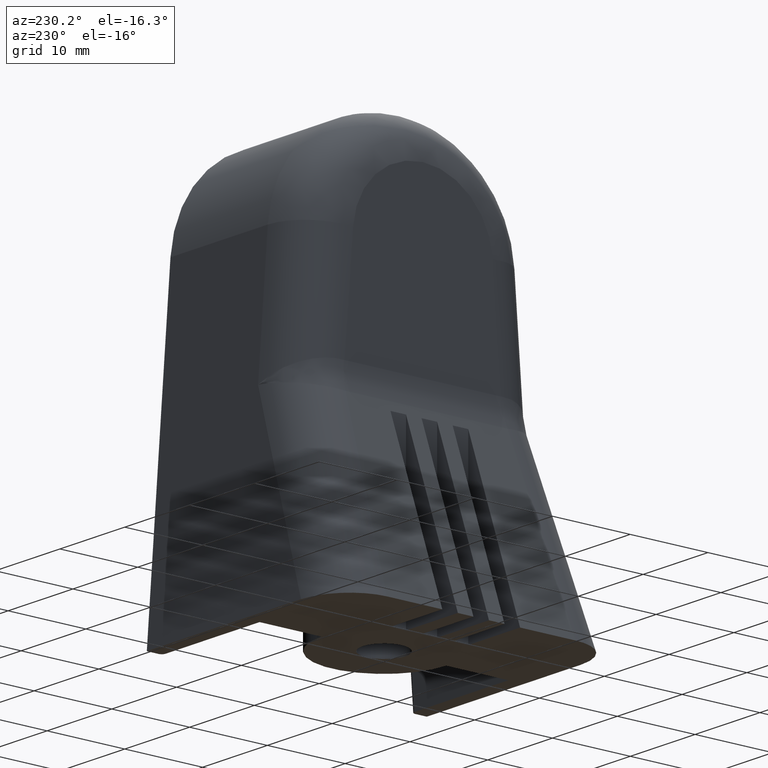
[diagram: clean part render]
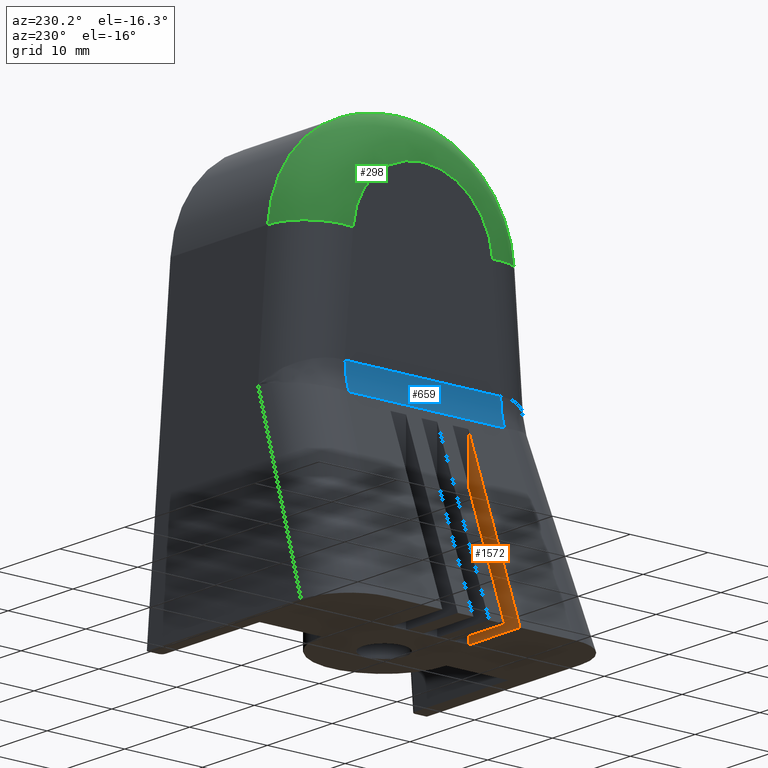
[diagram: same view with three faces highlighted in distinct colors, each labeled with its STEP entity id]
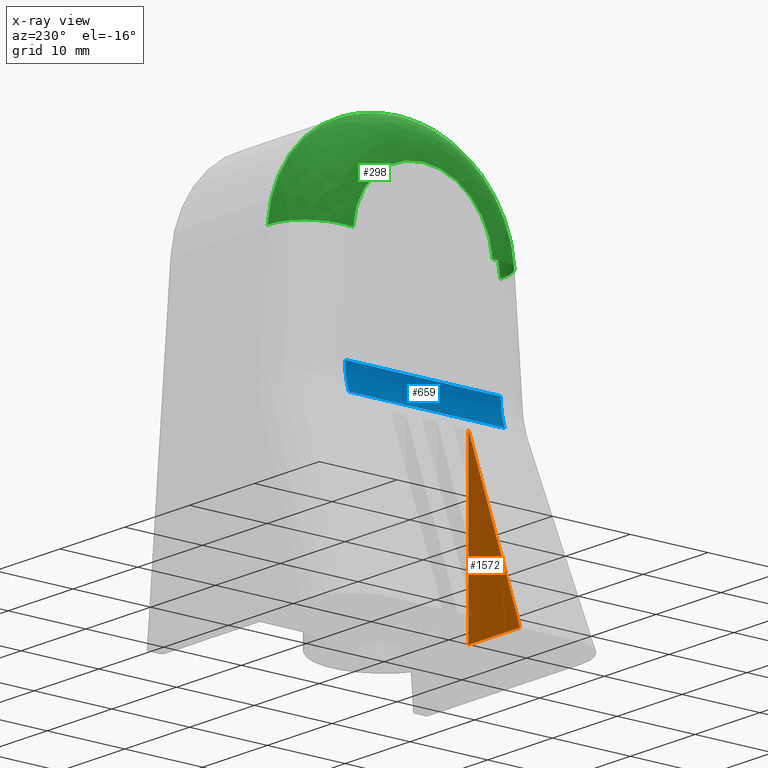
[diagram: x-ray of the same camera — body ghosted, the three highlighted faces saturated]
A machine part, auxiliary view with three faces highlighted in distinct colors.
The next image is the same camera in x-ray (body ghosted, the three faces saturated) — at least one of them is partly hidden behind the body in this view.
Their STEP definitions:

[orange] entity #1572 — the highlighted planar face has unit normal (0, 1, 0).
#489=CARTESIAN_POINT('',(-6.999999999999996,-4.999999999999996,22.222222222222214));
#490=VERTEX_POINT('',#489);
#497=CARTESIAN_POINT('',(-14.999999999999996,-4.999999999999996,3.061617E-016));
#498=VERTEX_POINT('',#497);
#499=CARTESIAN_POINT('',(-14.999999999999996,-4.999999999999996,3.061617E-016));
#500=DIRECTION('',(0.338719468272742,-7.521083E-017,0.940887411868727));
#501=VECTOR('',#500,23.618364898820300);
#502=LINE('',#499,#501);
#503=EDGE_CURVE('',#498,#490,#502,.T.);
#1524=CARTESIAN_POINT('',(-6.999999999999996,-4.999999999999998,3.061617E-016));
#1525=VERTEX_POINT('',#1524);
#1532=CARTESIAN_POINT('',(-6.999999999999996,-4.999999999999997,22.222222222222214));
#1533=DIRECTION('',(0.0,0.0,-1.0));
#1534=VECTOR('',#1533,22.222222222222214);
#1535=LINE('',#1532,#1534);
#1536=EDGE_CURVE('',#490,#1525,#1535,.T.);
#1557=CARTESIAN_POINT('',(-27.0,-4.999999999999992,62.289848327636719));
#1558=DIRECTION('',(0.0,1.0,0.0));
#1559=DIRECTION('',(1.0,0.0,0.0));
#1560=AXIS2_PLACEMENT_3D('',#1557,#1558,#1559);
#1561=PLANE('',#1560);
#1562=ORIENTED_EDGE('',*,*,#1536,.T.);
#1563=CARTESIAN_POINT('',(-14.999999999999996,-4.999999999999996,3.061617E-016));
#1564=DIRECTION('',(1.0,0.0,0.0));
#1565=VECTOR('',#1564,8.0);
#1566=LINE('',#1563,#1565);
#1567=EDGE_CURVE('',#498,#1525,#1566,.T.);
#1568=ORIENTED_EDGE('',*,*,#1567,.F.);
#1569=ORIENTED_EDGE('',*,*,#503,.T.);
#1570=EDGE_LOOP('',(#1562,#1568,#1569));
#1571=FACE_OUTER_BOUND('',#1570,.T.);
#1572=ADVANCED_FACE('',(#1571),#1561,.T.);

[blue] entity #659 — the highlighted cylindrical surface (partial cylindrical patch) has radius 10 mm, axis along (0, -1, 0).
#385=CARTESIAN_POINT('',(-5.999999999999999,10.005121839980950,26.745178345747590));
#386=VERTEX_POINT('',#385);
#521=CARTESIAN_POINT('',(-6.591125881312732,-10.005121839980950,23.357983663020178));
#522=VERTEX_POINT('',#521);
#530=CARTESIAN_POINT('',(-6.591125881312730,10.005121839980950,23.357983663020178));
#531=VERTEX_POINT('',#530);
#532=CARTESIAN_POINT('',(-6.591125881312732,-10.005121839980950,23.357983663020178));
#533=DIRECTION('',(0.0,1.0,0.0));
#534=VECTOR('',#533,20.010243679961899);
#535=LINE('',#532,#534);
#536=EDGE_CURVE('',#522,#531,#535,.T.);
#585=CARTESIAN_POINT('',(-6.000000000000001,-10.005121839980950,26.745178345747597));
#586=VERTEX_POINT('',#585);
#625=CARTESIAN_POINT('',(-6.000000000000001,-10.005121839980950,26.745178345747597));
#626=DIRECTION('',(0.0,1.0,0.0));
#627=VECTOR('',#626,20.010243679961899);
#628=LINE('',#625,#627);
#629=EDGE_CURVE('',#586,#386,#628,.T.);
#636=CARTESIAN_POINT('',(-16.0,-10.005121839980948,26.745178345747597));
#637=DIRECTION('',(5.193358E-017,-1.0,3.755821E-016));
#638=DIRECTION('',(0.940887411868727,-7.835332E-017,-0.338719468272742));
#639=AXIS2_PLACEMENT_3D('',#636,#637,#638);
#640=CYLINDRICAL_SURFACE('',#639,10.000000000000002);
#641=CARTESIAN_POINT('',(-16.000000000000004,-10.005121839980953,26.745178345747600));
#642=DIRECTION('',(5.193358E-017,-1.000000000000000,3.755821E-016));
#643=DIRECTION('',(0.940887411868727,-7.835332E-017,-0.338719468272742));
#644=AXIS2_PLACEMENT_3D('',#641,#642,#643);
#645=CIRCLE('',#644,10.000000000000002);
#646=EDGE_CURVE('',#522,#586,#645,.T.);
#647=ORIENTED_EDGE('',*,*,#646,.T.);
#648=ORIENTED_EDGE('',*,*,#629,.T.);
#649=CARTESIAN_POINT('',(-16.000000000000004,10.005121839980953,26.745178345747593));
#650=DIRECTION('',(-5.193358E-017,1.000000000000000,-3.755821E-016));
#651=DIRECTION('',(0.940887411868727,-7.835332E-017,-0.338719468272742));
#652=AXIS2_PLACEMENT_3D('',#649,#650,#651);
#653=CIRCLE('',#652,10.000000000000002);
#654=EDGE_CURVE('',#386,#531,#653,.T.);
#655=ORIENTED_EDGE('',*,*,#654,.T.);
#656=ORIENTED_EDGE('',*,*,#536,.F.);
#657=EDGE_LOOP('',(#647,#648,#655,#656));
#658=FACE_OUTER_BOUND('',#657,.T.);
#659=ADVANCED_FACE('',(#658),#640,.F.);

[green] entity #298 — the highlighted face is a freeform B-spline surface patch.
#17=CARTESIAN_POINT('',(2.636731E-015,-14.959125059578957,41.106606276810538));
#18=VERTEX_POINT('',#17);
#73=CARTESIAN_POINT('',(2.692339E-015,14.959125059578964,41.106606276810538));
#74=VERTEX_POINT('',#73);
#104=CARTESIAN_POINT('',(3.552714E-015,4.884981E-015,40.000000000000007));
#105=DIRECTION('',(-1.0,6.123234E-017,-3.081488E-033));
#106=DIRECTION('',(6.106548E-017,0.997275003971931,0.073773751787369));
#107=AXIS2_PLACEMENT_3D('',#104,#105,#106);
#108=CIRCLE('',#107,14.999999999999989);
#109=EDGE_CURVE('',#18,#74,#108,.T.);
#122=CARTESIAN_POINT('',(2.636731E-015,-14.959125059578955,41.106606276810538));
#123=CARTESIAN_POINT('',(-0.780361288064511,-14.959125059578955,41.106606276810538));
#124=CARTESIAN_POINT('',(-2.358166904059651,-14.647743235633607,41.083571702295629));
#125=CARTESIAN_POINT('',(-4.352477468837681,-13.316092020770206,40.985062358532460));
#126=CARTESIAN_POINT('',(-5.687767343305323,-11.327215944359935,40.837934585939607));
#127=CARTESIAN_POINT('',(-5.999999999999999,-9.753709842401445,40.721533946056461));
#128=CARTESIAN_POINT('',(-5.999999999999999,-8.975475035747367,40.663963766086319));
#129=CARTESIAN_POINT('',(2.638844E-015,-14.924626388219874,41.572959983692805));
#130=CARTESIAN_POINT('',(-0.780361288064510,-14.924626388219876,41.572959983692805));
#131=CARTESIAN_POINT('',(-2.358166904059649,-14.613962671728583,41.540218018720616));
#132=CARTESIAN_POINT('',(-4.352477468837680,-13.285382505301738,41.400194182776090));
#133=CARTESIAN_POINT('',(-5.687767343305322,-11.301093166542289,41.191062801879319));
#134=CARTESIAN_POINT('',(-5.999999999999998,-9.731215877744781,41.025607795478912));
#135=CARTESIAN_POINT('',(-5.999999999999999,-8.954775832931921,40.943775990215684));
#136=CARTESIAN_POINT('',(2.645748E-015,-14.811866461328805,42.503099610745700));
#137=CARTESIAN_POINT('',(-0.780361288064509,-14.811866461328805,42.503099610745700));
#138=CARTESIAN_POINT('',(-2.358166904059646,-14.503549900273644,42.450996314650062));
#139=CARTESIAN_POINT('',(-4.352477468837676,-13.185007546421698,42.228172076982553));
#140=CARTESIAN_POINT('',(-5.687767343305318,-11.215710095227731,41.895374877089083));
#141=CARTESIAN_POINT('',(-5.999999999999996,-9.657693689490754,41.632081235540440));
#142=CARTESIAN_POINT('',(-5.999999999999996,-8.887119876797279,41.501859766447410));
#143=CARTESIAN_POINT('',(2.670100E-015,-14.414178596612434,44.331957801481366));
#144=CARTESIAN_POINT('',(-0.780361288064512,-14.414178596612434,44.331957801481366));
#145=CARTESIAN_POINT('',(-2.358166904059654,-14.114140111459637,44.241785888611652));
#146=CARTESIAN_POINT('',(-4.352477468837686,-12.830999662871330,43.856157929349067));
#147=CARTESIAN_POINT('',(-5.687767343305327,-10.914576419016550,43.280206648704578));
#148=CARTESIAN_POINT('',(-6.000000000000001,-9.398391623037083,42.824540825542499));
#149=CARTESIAN_POINT('',(-6.000000000000001,-8.648507157967456,42.599174680888837));
#150=CARTESIAN_POINT('',(2.720059E-015,-13.598284178843665,46.536896832792046));
#151=CARTESIAN_POINT('',(-0.780361288064509,-13.598284178843665,46.536896832792046));
#152=CARTESIAN_POINT('',(-2.358166904059646,-13.315228952467033,46.400827988482582));
#153=CARTESIAN_POINT('',(-4.352477468837679,-12.104718874190787,45.818917845064796));
#154=CARTESIAN_POINT('',(-5.687767343305319,-10.296772087476004,44.949811017431387));
#155=CARTESIAN_POINT('',(-5.999999999999998,-8.866408811124177,44.262214181834054));
#156=CARTESIAN_POINT('',(-5.999999999999998,-8.158970507306192,43.922138099675223));
#157=CARTESIAN_POINT('',(2.809048E-015,-12.144983404506650,48.952068369594656));
#158=CARTESIAN_POINT('',(-0.780361288064511,-12.144983404506650,48.952068369594656));
#159=CARTESIAN_POINT('',(-2.358166904059651,-11.892179375579863,48.765726496931272));
#160=CARTESIAN_POINT('',(-4.352477468837682,-10.811041151205508,47.968819413633803));
#161=CARTESIAN_POINT('',(-5.687767343305326,-9.196316570361411,46.778605778560632));
#162=CARTESIAN_POINT('',(-5.999999999999999,-7.918821702241517,45.836964195339355));
#163=CARTESIAN_POINT('',(-5.999999999999999,-7.286990042703986,45.371241021756795));
#164=CARTESIAN_POINT('',(2.924004E-015,-10.267601897066534,51.055234264764735));
#165=CARTESIAN_POINT('',(-0.780361288064510,-10.267601897066534,51.055234264764735));
#166=CARTESIAN_POINT('',(-2.358166904059647,-10.053876522519570,50.825113920440089));
#167=CARTESIAN_POINT('',(-4.352477468837677,-9.139861532638401,49.840984428866221));
#168=CARTESIAN_POINT('',(-5.687767343305319,-7.774742403421416,48.371146396178432));
#169=CARTESIAN_POINT('',(-5.999999999999996,-6.694723741021821,47.208279015572614));
#170=CARTESIAN_POINT('',(-5.999999999999996,-6.160561138239924,46.633140558858827));
#171=CARTESIAN_POINT('',(3.060909E-015,-8.031782862525581,52.772302931675114));
#172=CARTESIAN_POINT('',(-0.780361288064511,-8.031782862525581,52.772302931675114));
#173=CARTESIAN_POINT('',(-2.358166904059654,-7.864597202448172,52.506440926577383));
#174=CARTESIAN_POINT('',(-4.352477468837680,-7.149613313764625,51.369459141357417));
#175=CARTESIAN_POINT('',(-5.687767343305326,-6.081755352648765,49.671329896478426));
#176=CARTESIAN_POINT('',(-5.999999999999996,-5.236915878852340,48.327849143492536));
#177=CARTESIAN_POINT('',(-5.999999999999996,-4.819069717515342,47.663381759005055));
#178=CARTESIAN_POINT('',(3.214983E-015,-5.515555418266813,54.043507324085603));
#179=CARTESIAN_POINT('',(-0.780361288064509,-5.515555418266813,54.043507324085603));
#180=CARTESIAN_POINT('',(-2.358166904059644,-5.400746316840669,53.751184550678261));
#181=CARTESIAN_POINT('',(-4.352477468837678,-4.909755296702215,52.501041008553997));
#182=CARTESIAN_POINT('',(-5.687767343305320,-4.176439933951002,50.633900007023215));
#183=CARTESIAN_POINT('',(-5.999999999999997,-3.596274979666077,49.156705025409160));
#184=CARTESIAN_POINT('',(-5.999999999999997,-3.309333250960084,48.426104394451372));
#185=CARTESIAN_POINT('',(3.380848E-015,-2.806772412455107,54.824419685850231));
#186=CARTESIAN_POINT('',(-0.780361288064509,-2.806772412455107,54.824419685850231));
#187=CARTESIAN_POINT('',(-2.358166904059647,-2.748348011983228,54.515841823018860));
#188=CARTESIAN_POINT('',(-4.352477468837678,-2.498491026497467,53.196181989593953));
#189=CARTESIAN_POINT('',(-5.687767343305321,-2.125319301491682,51.225215536514284));
#190=CARTESIAN_POINT('',(-5.999999999999996,-1.830083216478891,49.665878694234067));
#191=CARTESIAN_POINT('',(-5.999999999999996,-1.684063447473063,48.894651811510130));
#192=CARTESIAN_POINT('',(3.552714E-015,1.076916E-014,55.087790157074863));
#193=CARTESIAN_POINT('',(-0.780361288064509,1.099121E-014,55.087790157074863));
#194=CARTESIAN_POINT('',(-2.358166904059648,1.099121E-014,54.773730103448557));
#195=CARTESIAN_POINT('',(-4.352477468837678,1.099121E-014,53.430625208459539));
#196=CARTESIAN_POINT('',(-5.687767343305320,9.992007E-015,51.424642587832295));
#197=CARTESIAN_POINT('',(-5.999999999999996,9.992007E-015,49.837602584979720));
#198=CARTESIAN_POINT('',(-5.999999999999996,9.714451E-015,49.052674094244914));
#199=CARTESIAN_POINT('',(3.724579E-015,2.806772412455112,54.824419685850231));
#200=CARTESIAN_POINT('',(-0.780361288064510,2.806772412455112,54.824419685850231));
#201=CARTESIAN_POINT('',(-2.358166904059649,2.748348011983235,54.515841823018889));
#202=CARTESIAN_POINT('',(-4.352477468837681,2.498491026497475,53.196181989593924));
#203=CARTESIAN_POINT('',(-5.687767343305324,2.125319301491692,51.225215536514298));
#204=CARTESIAN_POINT('',(-5.999999999999995,1.830083216478900,49.665878694234067));
#205=CARTESIAN_POINT('',(-5.999999999999995,1.684063447473073,48.894651811510130));
#206=CARTESIAN_POINT('',(3.890444E-015,5.515555418266818,54.043507324085617));
#207=CARTESIAN_POINT('',(-0.780361288064509,5.515555418266818,54.043507324085617));
#208=CARTESIAN_POINT('',(-2.358166904059649,5.400746316840674,53.751184550678246));
#209=CARTESIAN_POINT('',(-4.352477468837679,4.909755296702221,52.501041008553983));
#210=CARTESIAN_POINT('',(-5.687767343305320,4.176439933951004,50.633900007023229));
#211=CARTESIAN_POINT('',(-5.999999999999997,3.596274979666085,49.156705025409153));
#212=CARTESIAN_POINT('',(-5.999999999999996,3.309333250960092,48.426104394451357));
#213=CARTESIAN_POINT('',(4.044519E-015,8.031782862525597,52.772302931675107));
#214=CARTESIAN_POINT('',(-0.780361288064509,8.031782862525597,52.772302931675107));
#215=CARTESIAN_POINT('',(-2.358166904059645,7.864597202448188,52.506440926577376));
#216=CARTESIAN_POINT('',(-4.352477468837678,7.149613313764647,51.369459141357439));
#217=CARTESIAN_POINT('',(-5.687767343305318,6.081755352648782,49.671329896478419));
#218=CARTESIAN_POINT('',(-5.999999999999994,5.236915878852358,48.327849143492550));
#219=CARTESIAN_POINT('',(-5.999999999999996,4.819069717515361,47.663381759005077));
#220=CARTESIAN_POINT('',(4.181423E-015,10.267601897066545,51.055234264764728));
#221=CARTESIAN_POINT('',(-0.780361288064508,10.267601897066545,51.055234264764728));
#222=CARTESIAN_POINT('',(-2.358166904059646,10.053876522519587,50.825113920440074));
#223=CARTESIAN_POINT('',(-4.352477468837678,9.139861532638410,49.840984428866214));
#224=CARTESIAN_POINT('',(-5.687767343305318,7.774742403421421,48.371146396178432));
#225=CARTESIAN_POINT('',(-5.999999999999995,6.694723741021829,47.208279015572614));
#226=CARTESIAN_POINT('',(-5.999999999999996,6.160561138239929,46.633140558858827));
#227=CARTESIAN_POINT('',(4.296379E-015,12.144983404506666,48.952068369594649));
#228=CARTESIAN_POINT('',(-0.780361288064508,12.144983404506666,48.952068369594649));
#229=CARTESIAN_POINT('',(-2.358166904059647,11.892179375579875,48.765726496931258));
#230=CARTESIAN_POINT('',(-4.352477468837680,10.811041151205515,47.968819413633810));
#231=CARTESIAN_POINT('',(-5.687767343305324,9.196316570361423,46.778605778560625));
#232=CARTESIAN_POINT('',(-5.999999999999996,7.918821702241531,45.836964195339355));
#233=CARTESIAN_POINT('',(-5.999999999999997,7.286990042704000,45.371241021756795));
#234=CARTESIAN_POINT('',(4.385368E-015,13.598284178843681,46.536896832792038));
#235=CARTESIAN_POINT('',(-0.780361288064509,13.598284178843681,46.536896832792038));
#236=CARTESIAN_POINT('',(-2.358166904059648,13.315228952467045,46.400827988482575));
#237=CARTESIAN_POINT('',(-4.352477468837680,12.104718874190819,45.818917845064803));
#238=CARTESIAN_POINT('',(-5.687767343305321,10.296772087476018,44.949811017431372));
#239=CARTESIAN_POINT('',(-5.999999999999998,8.866408811124195,44.262214181834047));
#240=CARTESIAN_POINT('',(-5.999999999999997,8.158970507306213,43.922138099675216));
#241=CARTESIAN_POINT('',(4.435328E-015,14.414178596612427,44.331957801481380));
#242=CARTESIAN_POINT('',(-0.780361288064508,14.414178596612427,44.331957801481380));
#243=CARTESIAN_POINT('',(-2.358166904059646,14.114140111459642,44.241785888611631));
#244=CARTESIAN_POINT('',(-4.352477468837678,12.830999662871319,43.856157929349045));
#245=CARTESIAN_POINT('',(-5.687767343305319,10.914576419016557,43.280206648704556));
#246=CARTESIAN_POINT('',(-5.999999999999995,9.398391623037089,42.824540825542485));
#247=CARTESIAN_POINT('',(-5.999999999999996,8.648507157967458,42.599174680888815));
#248=CARTESIAN_POINT('',(4.459679E-015,14.811866461328830,42.503099610745693));
#249=CARTESIAN_POINT('',(-0.780361288064508,14.811866461328830,42.503099610745693));
#250=CARTESIAN_POINT('',(-2.358166904059646,14.503549900273658,42.450996314650070));
#251=CARTESIAN_POINT('',(-4.352477468837678,13.185007546421723,42.228172076982538));
#252=CARTESIAN_POINT('',(-5.687767343305321,11.215710095227745,41.895374877089097));
#253=CARTESIAN_POINT('',(-5.999999999999996,9.657693689490774,41.632081235540440));
#254=CARTESIAN_POINT('',(-5.999999999999997,8.887119876797302,41.501859766447410));
#255=CARTESIAN_POINT('',(4.466583E-015,14.924626388219886,41.572959983692812));
#256=CARTESIAN_POINT('',(-0.780361288064509,14.924626388219886,41.572959983692812));
#257=CARTESIAN_POINT('',(-2.358166904059647,14.613962671728599,41.540218018720616));
#258=CARTESIAN_POINT('',(-4.352477468837679,13.285382505301763,41.400194182776090));
#259=CARTESIAN_POINT('',(-5.687767343305321,11.301093166542302,41.191062801879326));
#260=CARTESIAN_POINT('',(-5.999999999999996,9.731215877744797,41.025607795478912));
#261=CARTESIAN_POINT('',(-5.999999999999997,8.954775832931933,40.943775990215684));
#262=CARTESIAN_POINT('',(4.468696E-015,14.959125059578966,41.106606276810538));
#263=CARTESIAN_POINT('',(-0.780361288064509,14.959125059578966,41.106606276810538));
#264=CARTESIAN_POINT('',(-2.358166904059648,14.647743235633616,41.083571702295629));
#265=CARTESIAN_POINT('',(-4.352477468837679,13.316092020770224,40.985062358532460));
#266=CARTESIAN_POINT('',(-5.687767343305321,11.327215944359949,40.837934585939607));
#267=CARTESIAN_POINT('',(-5.999999999999996,9.753709842401459,40.721533946056461));
#268=CARTESIAN_POINT('',(-5.999999999999997,8.975475035747381,40.663963766086319));
#269=B_SPLINE_SURFACE_WITH_KNOTS('',3,3,((#122,#129,#136,#143,#150,#157,#164,#171,#178,#185,#192,#199,#206,#213,#220,#227,#234,#241,#248,#255,#262),(#123,#130,#137,#144,#151,#158,#165,#172,#179,#186,#193,#200,#207,#214,#221,#228,#235,#242,#249,#256,#263),(#124,#131,#138,#145,#152,#159,#166,#173,#180,#187,#194,#201,#208,#215,#222,#229,#236,#243,#250,#257,#264),(#125,#132,#139,#146,#153,#160,#167,#174,#181,#188,#195,#202,#209,#216,#223,#230,#237,#244,#251,#258,#265),(#126,#133,#140,#147,#154,#161,#168,#175,#182,#189,#196,#203,#210,#217,#224,#231,#238,#245,#252,#259,#266),(#127,#134,#141,#148,#155,#162,#169,#176,#183,#190,#197,#204,#211,#218,#225,#232,#239,#246,#253,#260,#267),(#128,#135,#142,#149,#156,#163,#170,#177,#184,#191,#198,#205,#212,#219,#226,#233,#240,#247,#254,#261,#268)),.UNSPECIFIED.,.F.,.F.,.U.,(4,1,1,1,4),(4,1,1,1,1,1,1,1,1,1,1,1,1,1,1,1,1,1,4),(0.0,2.341083864193539,4.682167728387078,7.023251592580619,9.364335456774157),(0.0,1.179956703493291,2.359913406986593,4.717245120422803,7.074576833859010,9.431908547295228,11.789240260731439,14.146571974167657,16.503903687603874,18.861235401040084,21.218567114476301,23.575898827912518,25.933230541348724,28.290562254784941,30.647893968221155,33.005225681657372,35.362557395093589,36.542514098586864,37.722470802080167),.UNSPECIFIED.);
#270=CARTESIAN_POINT('',(-5.999999999999997,8.975475035747378,40.663963766086326));
#271=VERTEX_POINT('',#270);
#272=CARTESIAN_POINT('',(2.325946E-015,8.975475035747378,40.663963766086326));
#273=DIRECTION('',(1.085777E-016,-0.073773751787369,0.997275003971931));
#274=DIRECTION('',(6.106548E-017,0.997275003971931,0.073773751787369));
#275=AXIS2_PLACEMENT_3D('',#272,#273,#274);
#276=CIRCLE('',#275,5.999999999999998);
#277=EDGE_CURVE('',#74,#271,#276,.T.);
#278=ORIENTED_EDGE('',*,*,#277,.T.);
#279=CARTESIAN_POINT('',(-5.999999999999999,-8.975475035747369,40.663963766086319));
#280=VERTEX_POINT('',#279);
#281=CARTESIAN_POINT('',(-5.999999999999998,6.140554E-015,40.000000000000007));
#282=DIRECTION('',(-1.0,6.123234E-017,1.578984E-016));
#283=DIRECTION('',(7.271424E-017,0.997275003971931,0.073773751787369));
#284=AXIS2_PLACEMENT_3D('',#281,#282,#283);
#285=CIRCLE('',#284,8.999999999999991);
#286=EDGE_CURVE('',#280,#271,#285,.T.);
#287=ORIENTED_EDGE('',*,*,#286,.F.);
#288=CARTESIAN_POINT('',(3.003124E-015,-8.975475035747367,40.663963766086319));
#289=DIRECTION('',(7.818472E-018,-0.073773751787370,-0.997275003971931));
#290=DIRECTION('',(-6.106548E-017,-0.997275003971931,0.073773751787370));
#291=AXIS2_PLACEMENT_3D('',#288,#289,#290);
#292=CIRCLE('',#291,6.000000000000002);
#293=EDGE_CURVE('',#18,#280,#292,.T.);
#294=ORIENTED_EDGE('',*,*,#293,.F.);
#295=ORIENTED_EDGE('',*,*,#109,.T.);
#296=EDGE_LOOP('',(#278,#287,#294,#295));
#297=FACE_OUTER_BOUND('',#296,.T.);
#298=ADVANCED_FACE('',(#297),#269,.F.);